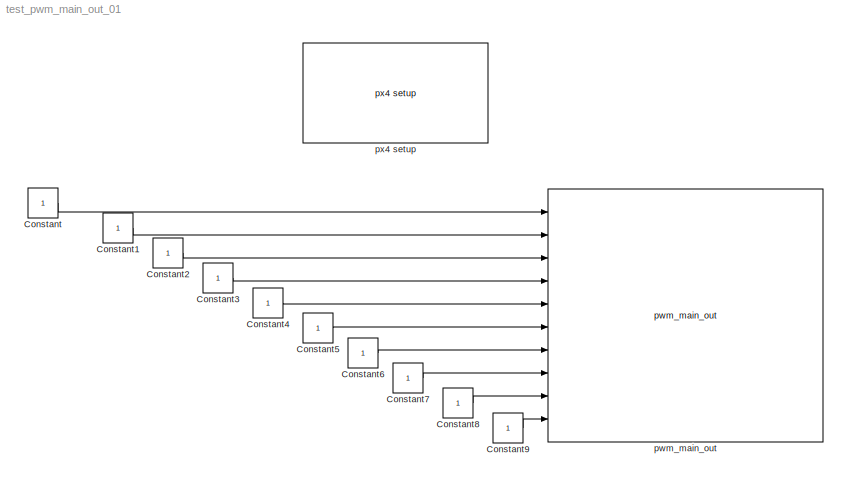
MODEL test_pwm_main_out_01
KIND model
CONFIG InitFcn = px4_ap1_mdl_callback('check_model');
BLOCK [Constant] Constant
  OutDataTypeStr = boolean
  SID = 1
BLOCK [Constant] Constant1
  OutDataTypeStr = boolean
  SID = 2
BLOCK [Constant] Constant2
  OutDataTypeStr = uint16
  SID = 3
BLOCK [Constant] Constant3
  OutDataTypeStr = uint16
  SID = 4
BLOCK [Constant] Constant4
  OutDataTypeStr = uint16
  SID = 5
BLOCK [Constant] Constant5
  OutDataTypeStr = uint16
  SID = 6
BLOCK [Constant] Constant6
  OutDataTypeStr = uint16
  SID = 7
BLOCK [Constant] Constant7
  OutDataTypeStr = uint16
  SID = 8
BLOCK [Constant] Constant8
  OutDataTypeStr = uint16
  SID = 9
BLOCK [Constant] Constant9
  OutDataTypeStr = uint16
  SID = 10
BLOCK [Reference] pwm_main_out  REF=px4_ap1_pwm_main_out_lib/pwm_main_out
  Description = Setup for PX4 native software
  Ports = [10]
  SID = 11
  SourceBlock = px4_ap1_pwm_main_out_lib/pwm_main_out
  SourceType = PX4_PWM_MAIN_OUT
  alt_pwm = 400
  def_pwm = 50
  main1 = on
  main2 = on
  main3 = on
  main4 = on
  main5 = on
  main6 = on
  main7 = on
  main8 = on
  pwm_1_2 = Default
  pwm_3_4 = Default
  pwm_5_8 = Alternate
BLOCK [Reference] px4 setup  REF=px4_ap1_px4setup_lib/px4 setup
  Ports = []
  SID = 12
  SampleTimeValue = 0.01
  SourceBlock = px4_ap1_px4setup_lib/px4 setup
  SourceType = PX4_Target_Setup
  cbBuild = on
  cbPort = COM3
  cbUpload = off
  cpuLoad = off
  debugmode = on
LINE Constant1:1 -> pwm_main_out:2
LINE Constant2:1 -> pwm_main_out:3
LINE Constant3:1 -> pwm_main_out:4
LINE Constant4:1 -> pwm_main_out:5
LINE Constant5:1 -> pwm_main_out:6
LINE Constant6:1 -> pwm_main_out:7
LINE Constant7:1 -> pwm_main_out:8
LINE Constant8:1 -> pwm_main_out:9
LINE Constant9:1 -> pwm_main_out:10
LINE Constant:1 -> pwm_main_out:1
